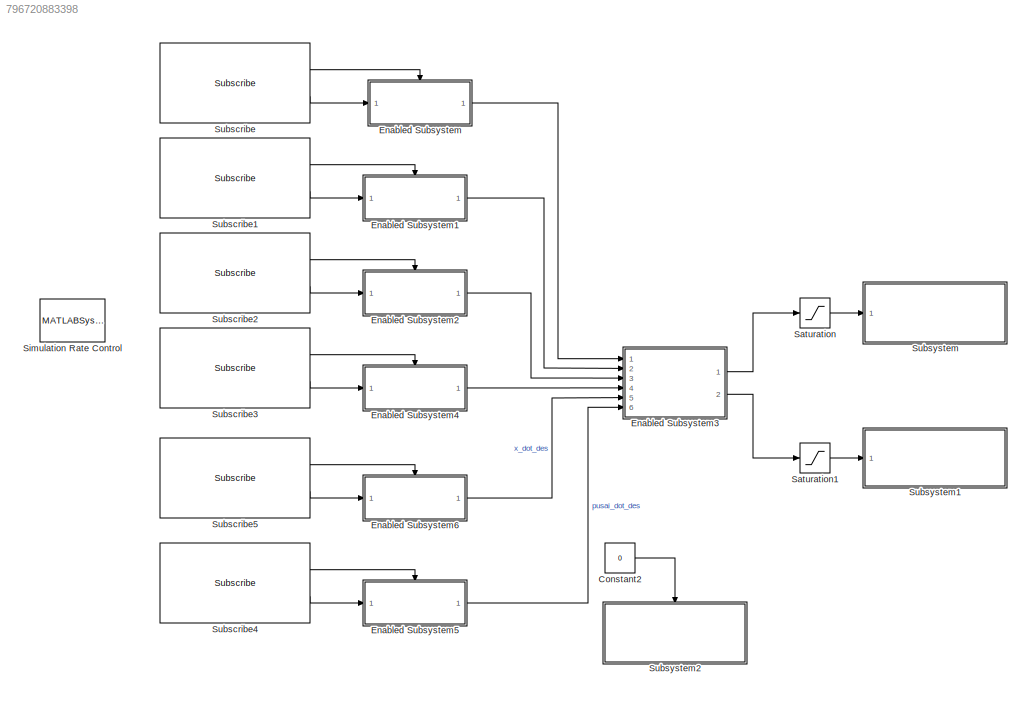
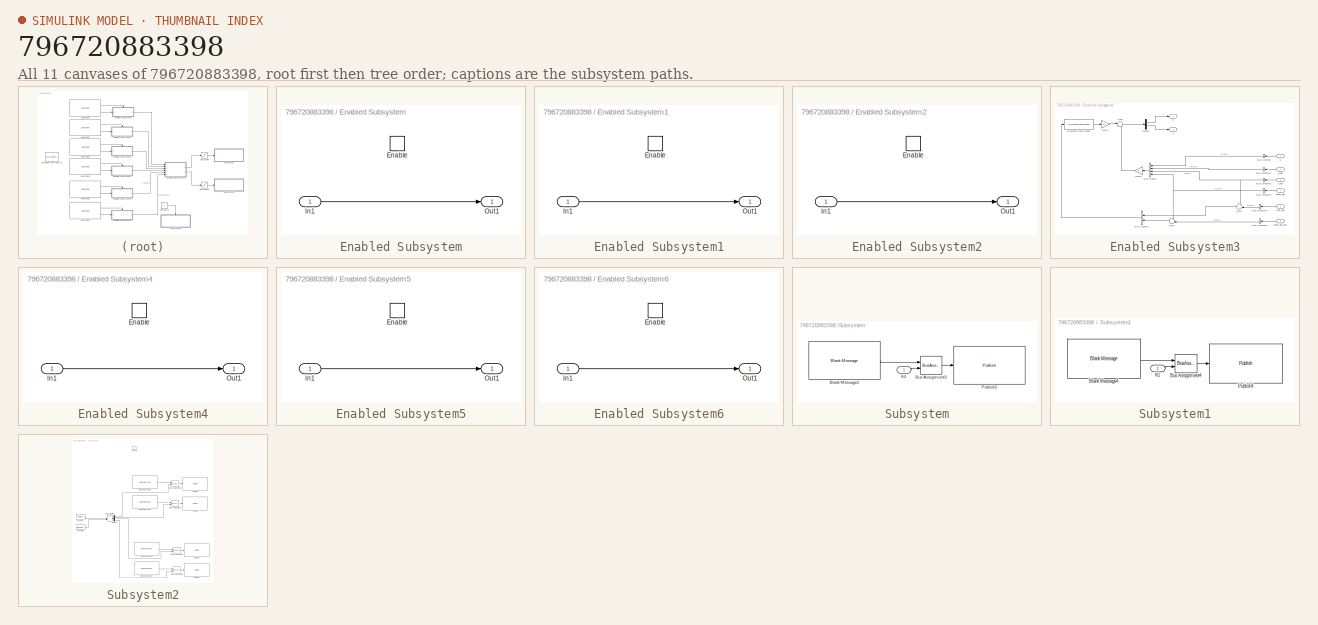
[diagram: thumbnail index - all 11 canvases of the model, root first then tree order]
MODEL slx_796720883398
KIND model
CONFIG AbsTol = auto
CONFIG EnableMultiTasking = off
CONFIG FixedStep = 0.01
CONFIG MaxStep = auto
CONFIG MinStep = auto
CONFIG RelTol = 1e-3
CONFIG SampleTimeConstraint = Unconstrained
CONFIG Solver = FixedStepAuto
CONFIG SolverName = FixedStepAuto
CONFIG StartTime = 0.0
CONFIG StopTime = inf
BLOCK [Constant] Constant2
  Value = 0
BLOCK [SubSystem] Enabled Subsystem
  Ports = [1, 1, 1]
  RequestExecContextInheritance = off
  TreatAsAtomicUnit = on
BLOCK [EnablePort] Enabled Subsystem/Enable
  Ports = []
BLOCK [Inport] Enabled Subsystem/In1
  IconDisplay = Port number
BLOCK [Outport] Enabled Subsystem/Out1
  IconDisplay = Port number
BLOCK [SubSystem] Enabled Subsystem1
  Ports = [1, 1, 1]
  RequestExecContextInheritance = off
  TreatAsAtomicUnit = on
BLOCK [EnablePort] Enabled Subsystem1/Enable
  Ports = []
BLOCK [Inport] Enabled Subsystem1/In1
  IconDisplay = Port number
BLOCK [Outport] Enabled Subsystem1/Out1
  IconDisplay = Port number
BLOCK [SubSystem] Enabled Subsystem2
  Ports = [1, 1, 1]
  RequestExecContextInheritance = off
  TreatAsAtomicUnit = on
BLOCK [EnablePort] Enabled Subsystem2/Enable
  Ports = []
BLOCK [Inport] Enabled Subsystem2/In1
  IconDisplay = Port number
BLOCK [Outport] Enabled Subsystem2/Out1
  IconDisplay = Port number
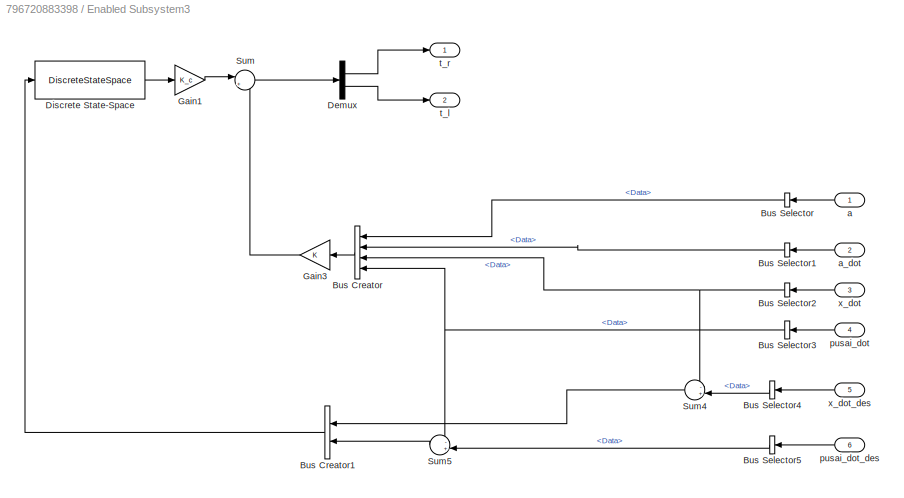
BLOCK [SubSystem] Enabled Subsystem3
  Ports = [6, 2]
  RequestExecContextInheritance = off
  TreatAsAtomicUnit = on
BLOCK [BusCreator] Enabled Subsystem3/Bus Creator
  DisplayOption = bar
  InheritFromInputs = on
  Inputs = 4
  Ports = [4, 1]
BLOCK [BusCreator] Enabled Subsystem3/Bus Creator1
  DisplayOption = bar
  InheritFromInputs = on
  Inputs = 2
  Ports = [2, 1]
BLOCK [BusSelector] Enabled Subsystem3/Bus Selector
  OutputAsBus = off
  OutputSignals = Data
  Ports = [1, 1]
BLOCK [BusSelector] Enabled Subsystem3/Bus Selector1
  OutputAsBus = off
  OutputSignals = Data
  Ports = [1, 1]
BLOCK [BusSelector] Enabled Subsystem3/Bus Selector2
  OutputAsBus = off
  OutputSignals = Data
  Ports = [1, 1]
BLOCK [BusSelector] Enabled Subsystem3/Bus Selector3
  OutputAsBus = off
  OutputSignals = Data
  Ports = [1, 1]
BLOCK [BusSelector] Enabled Subsystem3/Bus Selector4
  OutputAsBus = off
  OutputSignals = Data
  Ports = [1, 1]
BLOCK [BusSelector] Enabled Subsystem3/Bus Selector5
  OutputAsBus = off
  OutputSignals = Data
  Ports = [1, 1]
BLOCK [Demux] Enabled Subsystem3/Demux
  DisplayOption = bar
  Outputs = 2
  Ports = [1, 2]
BLOCK [DiscreteStateSpace] Enabled Subsystem3/Discrete State-Space
  A = sys_c_d.A
  B = sys_c_d.B
  C = sys_c_d.C
  D = sys_c_d.D
  SampleTime = -1
BLOCK [Gain] Enabled Subsystem3/Gain1
  Gain = K_c
  Multiplication = Matrix(K*u) (u vector)
  OutDataTypeStr = Inherit: Inherit via internal rule
  ParamDataTypeStr = Inherit: Inherit via internal rule
  SaturateOnIntegerOverflow = off
BLOCK [Gain] Enabled Subsystem3/Gain3
  Gain = K
  Multiplication = Matrix(K*u) (u vector)
  OutDataTypeStr = Inherit: Inherit via internal rule
  ParamDataTypeStr = Inherit: Inherit via internal rule
  SaturateOnIntegerOverflow = off
BLOCK [Sum] Enabled Subsystem3/Sum
  IconShape = round
  InputSameDT = off
  Inputs = |+-
  OutDataTypeStr = Inherit: Inherit via internal rule
  Ports = [2, 1]
  SaturateOnIntegerOverflow = off
BLOCK [Sum] Enabled Subsystem3/Sum4
  IconShape = round
  InputSameDT = off
  Inputs = -+|
  OutDataTypeStr = Inherit: Inherit via internal rule
  Ports = [2, 1]
  SaturateOnIntegerOverflow = off
BLOCK [Sum] Enabled Subsystem3/Sum5
  IconShape = round
  InputSameDT = off
  Inputs = -+|
  OutDataTypeStr = Inherit: Inherit via internal rule
  Ports = [2, 1]
  SaturateOnIntegerOverflow = off
BLOCK [Inport] Enabled Subsystem3/a
  IconDisplay = Port number
BLOCK [Inport] Enabled Subsystem3/a_dot
  IconDisplay = Port number
  Port = 2
BLOCK [Inport] Enabled Subsystem3/pusai_dot
  IconDisplay = Port number
  Port = 4
BLOCK [Inport] Enabled Subsystem3/pusai_dot_des
  IconDisplay = Port number
  Port = 6
BLOCK [Outport] Enabled Subsystem3/t_l
  IconDisplay = Port number
  Port = 2
BLOCK [Outport] Enabled Subsystem3/t_r
  IconDisplay = Port number
BLOCK [Inport] Enabled Subsystem3/x_dot
  IconDisplay = Port number
  Port = 3
BLOCK [Inport] Enabled Subsystem3/x_dot_des
  IconDisplay = Port number
  Port = 5
BLOCK [SubSystem] Enabled Subsystem4
  Ports = [1, 1, 1]
  RequestExecContextInheritance = off
  TreatAsAtomicUnit = on
BLOCK [EnablePort] Enabled Subsystem4/Enable
  Ports = []
BLOCK [Inport] Enabled Subsystem4/In1
  IconDisplay = Port number
BLOCK [Outport] Enabled Subsystem4/Out1
  IconDisplay = Port number
BLOCK [SubSystem] Enabled Subsystem5
  Ports = [1, 1, 1]
  RequestExecContextInheritance = off
  TreatAsAtomicUnit = on
BLOCK [EnablePort] Enabled Subsystem5/Enable
  Ports = []
BLOCK [Inport] Enabled Subsystem5/In1
  IconDisplay = Port number
BLOCK [Outport] Enabled Subsystem5/Out1
  IconDisplay = Port number
BLOCK [SubSystem] Enabled Subsystem6
  Ports = [1, 1, 1]
  RequestExecContextInheritance = off
  TreatAsAtomicUnit = on
BLOCK [EnablePort] Enabled Subsystem6/Enable
  Ports = []
BLOCK [Inport] Enabled Subsystem6/In1
  IconDisplay = Port number
BLOCK [Outport] Enabled Subsystem6/Out1
  IconDisplay = Port number
BLOCK [Saturate] Saturation
  InputPortMap = u0
  LowerLimit = -2
  Ports = [1, 1]
  UpperLimit = 2
BLOCK [Saturate] Saturation1
  InputPortMap = u0
  LowerLimit = -2
  Ports = [1, 1]
  UpperLimit = 2
BLOCK [MATLABSystem] Simulation Rate Control
  MaskDisplay = disp('Rate Control');
  MaskType = ExampleHelperSimulationRateControl
  Ports = []
  SampleTime = 0.01
  System = ExampleHelperSimulationRateControl
BLOCK [Reference] Subscribe  REF=robotlib/Subscribe
  Ports = [0, 2]
  SourceBlock = robotlib/Subscribe
  SourceProductBaseCode = RR
  SourceProductName = ROS Toolbox
  SourceType = ROS Subscribe
BLOCK [Reference] Subscribe1  REF=robotlib/Subscribe
  Ports = [0, 2]
  SourceBlock = robotlib/Subscribe
  SourceProductBaseCode = RR
  SourceProductName = ROS Toolbox
  SourceType = ROS Subscribe
BLOCK [Reference] Subscribe2  REF=robotlib/Subscribe
  Ports = [0, 2]
  SourceBlock = robotlib/Subscribe
  SourceProductBaseCode = RR
  SourceProductName = ROS Toolbox
  SourceType = ROS Subscribe
BLOCK [Reference] Subscribe3  REF=robotlib/Subscribe
  Ports = [0, 2]
  SourceBlock = robotlib/Subscribe
  SourceProductBaseCode = RR
  SourceProductName = ROS Toolbox
  SourceType = ROS Subscribe
BLOCK [Reference] Subscribe4  REF=robotlib/Subscribe
  Ports = [0, 2]
  SourceBlock = robotlib/Subscribe
  SourceProductBaseCode = RR
  SourceProductName = ROS Toolbox
  SourceType = ROS Subscribe
BLOCK [Reference] Subscribe5  REF=robotlib/Subscribe
  Ports = [0, 2]
  SourceBlock = robotlib/Subscribe
  SourceProductBaseCode = RR
  SourceProductName = ROS Toolbox
  SourceType = ROS Subscribe
BLOCK [SubSystem] Subsystem
  Ports = [1]
  RequestExecContextInheritance = off
BLOCK [Reference] Subsystem/Blank Message3  REF=robotlib/Blank Message
  Ports = [0, 1]
  SourceBlock = robotlib/Blank Message
  SourceProductBaseCode = RR
  SourceProductName = ROS Toolbox
  SourceType = ROS Blank Message
BLOCK [BusAssignment] Subsystem/Bus Assignment3
  AssignedSignals = Data
  Ports = [2, 1]
BLOCK [Inport] Subsystem/In1
  IconDisplay = Port number
BLOCK [Reference] Subsystem/Publish3  REF=robotlib/Publish
  Ports = [1]
  SourceBlock = robotlib/Publish
  SourceProductBaseCode = RR
  SourceProductName = ROS Toolbox
  SourceType = ROS Publish
BLOCK [SubSystem] Subsystem1
  Ports = [1]
  RequestExecContextInheritance = off
BLOCK [Reference] Subsystem1/Blank Message4  REF=robotlib/Blank Message
  Ports = [0, 1]
  SourceBlock = robotlib/Blank Message
  SourceProductBaseCode = RR
  SourceProductName = ROS Toolbox
  SourceType = ROS Blank Message
BLOCK [BusAssignment] Subsystem1/Bus Assignment4
  AssignedSignals = Data
  Ports = [2, 1]
BLOCK [Inport] Subsystem1/In1
  IconDisplay = Port number
BLOCK [Reference] Subsystem1/Publish4  REF=robotlib/Publish
  Ports = [1]
  SourceBlock = robotlib/Publish
  SourceProductBaseCode = RR
  SourceProductName = ROS Toolbox
  SourceType = ROS Publish
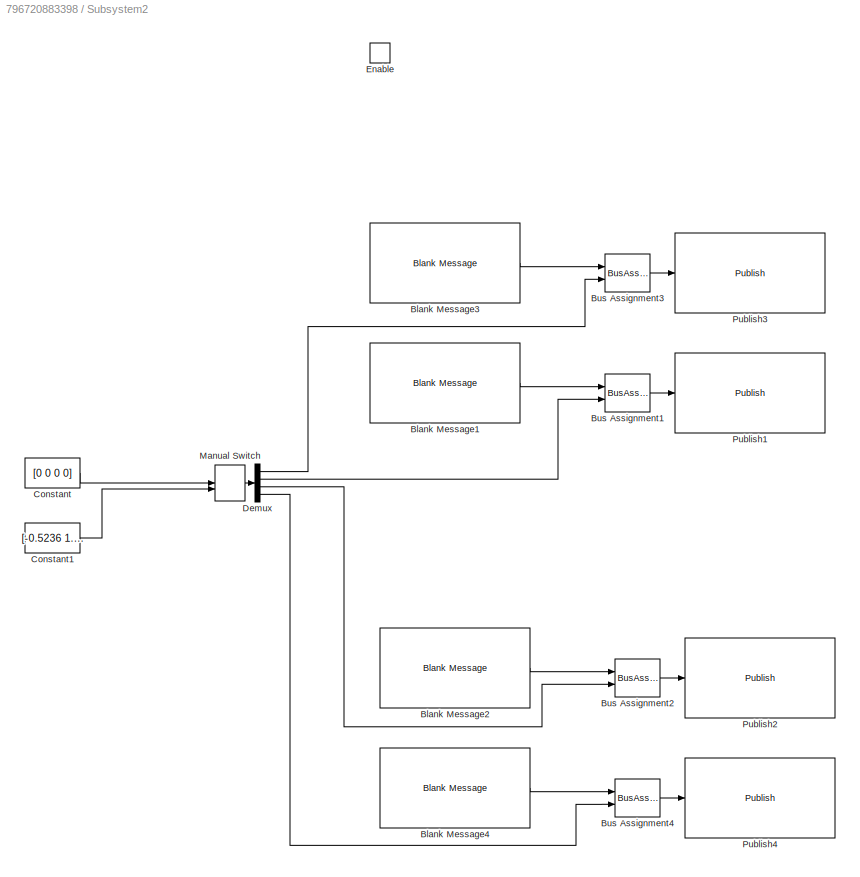
BLOCK [SubSystem] Subsystem2
  Ports = [0, 0, 1]
  RequestExecContextInheritance = off
BLOCK [Reference] Subsystem2/Blank Message1  REF=robotlib/Blank Message
  Ports = [0, 1]
  SourceBlock = robotlib/Blank Message
  SourceProductBaseCode = RR
  SourceProductName = ROS Toolbox
  SourceType = ROS Blank Message
BLOCK [Reference] Subsystem2/Blank Message2  REF=robotlib/Blank Message
  Ports = [0, 1]
  SourceBlock = robotlib/Blank Message
  SourceProductBaseCode = RR
  SourceProductName = ROS Toolbox
  SourceType = ROS Blank Message
BLOCK [Reference] Subsystem2/Blank Message3  REF=robotlib/Blank Message
  Ports = [0, 1]
  SourceBlock = robotlib/Blank Message
  SourceProductBaseCode = RR
  SourceProductName = ROS Toolbox
  SourceType = ROS Blank Message
BLOCK [Reference] Subsystem2/Blank Message4  REF=robotlib/Blank Message
  Ports = [0, 1]
  SourceBlock = robotlib/Blank Message
  SourceProductBaseCode = RR
  SourceProductName = ROS Toolbox
  SourceType = ROS Blank Message
BLOCK [BusAssignment] Subsystem2/Bus Assignment1
  AssignedSignals = Data
  Ports = [2, 1]
BLOCK [BusAssignment] Subsystem2/Bus Assignment2
  AssignedSignals = Data
  Ports = [2, 1]
BLOCK [BusAssignment] Subsystem2/Bus Assignment3
  AssignedSignals = Data
  Ports = [2, 1]
BLOCK [BusAssignment] Subsystem2/Bus Assignment4
  AssignedSignals = Data
  Ports = [2, 1]
BLOCK [Constant] Subsystem2/Constant
  Value = [0 0 0 0]
BLOCK [Constant] Subsystem2/Constant1
  Value = [-0.5236 1.0472 -0.5236  1.0472]
BLOCK [Demux] Subsystem2/Demux
  DisplayOption = bar
  Ports = [1, 4]
BLOCK [EnablePort] Subsystem2/Enable
  Ports = []
BLOCK [ManualSwitch] Subsystem2/Manual Switch
BLOCK [Reference] Subsystem2/Publish1  REF=robotlib/Publish
  Ports = [1]
  SourceBlock = robotlib/Publish
  SourceProductBaseCode = RR
  SourceProductName = ROS Toolbox
  SourceType = ROS Publish
BLOCK [Reference] Subsystem2/Publish2  REF=robotlib/Publish
  Ports = [1]
  SourceBlock = robotlib/Publish
  SourceProductBaseCode = RR
  SourceProductName = ROS Toolbox
  SourceType = ROS Publish
BLOCK [Reference] Subsystem2/Publish3  REF=robotlib/Publish
  Ports = [1]
  SourceBlock = robotlib/Publish
  SourceProductBaseCode = RR
  SourceProductName = ROS Toolbox
  SourceType = ROS Publish
BLOCK [Reference] Subsystem2/Publish4  REF=robotlib/Publish
  Ports = [1]
  SourceBlock = robotlib/Publish
  SourceProductBaseCode = RR
  SourceProductName = ROS Toolbox
  SourceType = ROS Publish
LINE Constant2:1 -> Subsystem2:enable
LINE Enabled Subsystem/In1:1 -> Enabled Subsystem/Out1:1
LINE Enabled Subsystem1/In1:1 -> Enabled Subsystem1/Out1:1
LINE Enabled Subsystem1:1 -> Enabled Subsystem3:2
LINE Enabled Subsystem2/In1:1 -> Enabled Subsystem2/Out1:1
LINE Enabled Subsystem2:1 -> Enabled Subsystem3:3
LINE Enabled Subsystem3/Bus Creator1:1 -> Enabled Subsystem3/Discrete State-Space:1
LINE Enabled Subsystem3/Bus Creator:1 -> Enabled Subsystem3/Gain3:1
LINE Enabled Subsystem3/Bus Selector1:1 -> Enabled Subsystem3/Bus Creator:2
NET Enabled Subsystem3/Bus Selector2:1 -> Enabled Subsystem3/Bus Creator:3, Enabled Subsystem3/Sum4:1
NET Enabled Subsystem3/Bus Selector3:1 -> Enabled Subsystem3/Bus Creator:4, Enabled Subsystem3/Sum5:1
LINE Enabled Subsystem3/Bus Selector4:1 -> Enabled Subsystem3/Sum4:2
LINE Enabled Subsystem3/Bus Selector5:1 -> Enabled Subsystem3/Sum5:2
LINE Enabled Subsystem3/Bus Selector:1 -> Enabled Subsystem3/Bus Creator:1
LINE Enabled Subsystem3/Demux:1 -> Enabled Subsystem3/t_r:1
LINE Enabled Subsystem3/Demux:2 -> Enabled Subsystem3/t_l:1
LINE Enabled Subsystem3/Discrete State-Space:1 -> Enabled Subsystem3/Gain1:1
LINE Enabled Subsystem3/Gain1:1 -> Enabled Subsystem3/Sum:1
LINE Enabled Subsystem3/Gain3:1 -> Enabled Subsystem3/Sum:2
LINE Enabled Subsystem3/Sum4:1 -> Enabled Subsystem3/Bus Creator1:1
LINE Enabled Subsystem3/Sum5:1 -> Enabled Subsystem3/Bus Creator1:2
LINE Enabled Subsystem3/Sum:1 -> Enabled Subsystem3/Demux:1
LINE Enabled Subsystem3/a:1 -> Enabled Subsystem3/Bus Selector:1
LINE Enabled Subsystem3/a_dot:1 -> Enabled Subsystem3/Bus Selector1:1
LINE Enabled Subsystem3/pusai_dot:1 -> Enabled Subsystem3/Bus Selector3:1
LINE Enabled Subsystem3/pusai_dot_des:1 -> Enabled Subsystem3/Bus Selector5:1
LINE Enabled Subsystem3/x_dot:1 -> Enabled Subsystem3/Bus Selector2:1
LINE Enabled Subsystem3/x_dot_des:1 -> Enabled Subsystem3/Bus Selector4:1
LINE Enabled Subsystem3:1 -> Saturation:1
LINE Enabled Subsystem3:2 -> Saturation1:1
LINE Enabled Subsystem4/In1:1 -> Enabled Subsystem4/Out1:1
LINE Enabled Subsystem4:1 -> Enabled Subsystem3:4
LINE Enabled Subsystem5/In1:1 -> Enabled Subsystem5/Out1:1
LINE Enabled Subsystem5:1 -> Enabled Subsystem3:6
LINE Enabled Subsystem6/In1:1 -> Enabled Subsystem6/Out1:1
LINE Enabled Subsystem6:1 -> Enabled Subsystem3:5
LINE Enabled Subsystem:1 -> Enabled Subsystem3:1
LINE Saturation1:1 -> Subsystem1:1
LINE Saturation:1 -> Subsystem:1
LINE Subscribe1:1 -> Enabled Subsystem1:enable
LINE Subscribe1:2 -> Enabled Subsystem1:1
LINE Subscribe2:1 -> Enabled Subsystem2:enable
LINE Subscribe2:2 -> Enabled Subsystem2:1
LINE Subscribe3:1 -> Enabled Subsystem4:enable
LINE Subscribe3:2 -> Enabled Subsystem4:1
LINE Subscribe4:1 -> Enabled Subsystem5:enable
LINE Subscribe4:2 -> Enabled Subsystem5:1
LINE Subscribe5:1 -> Enabled Subsystem6:enable
LINE Subscribe5:2 -> Enabled Subsystem6:1
LINE Subscribe:1 -> Enabled Subsystem:enable
LINE Subscribe:2 -> Enabled Subsystem:1
LINE Subsystem/Blank Message3:1 -> Subsystem/Bus Assignment3:1
LINE Subsystem/Bus Assignment3:1 -> Subsystem/Publish3:1
LINE Subsystem/In1:1 -> Subsystem/Bus Assignment3:2
LINE Subsystem1/Blank Message4:1 -> Subsystem1/Bus Assignment4:1
LINE Subsystem1/Bus Assignment4:1 -> Subsystem1/Publish4:1
LINE Subsystem1/In1:1 -> Subsystem1/Bus Assignment4:2
LINE Subsystem2/Blank Message1:1 -> Subsystem2/Bus Assignment1:1
LINE Subsystem2/Blank Message2:1 -> Subsystem2/Bus Assignment2:1
LINE Subsystem2/Blank Message3:1 -> Subsystem2/Bus Assignment3:1
LINE Subsystem2/Blank Message4:1 -> Subsystem2/Bus Assignment4:1
LINE Subsystem2/Bus Assignment1:1 -> Subsystem2/Publish1:1
LINE Subsystem2/Bus Assignment2:1 -> Subsystem2/Publish2:1
LINE Subsystem2/Bus Assignment3:1 -> Subsystem2/Publish3:1
LINE Subsystem2/Bus Assignment4:1 -> Subsystem2/Publish4:1
LINE Subsystem2/Constant1:1 -> Subsystem2/Manual Switch:2
LINE Subsystem2/Constant:1 -> Subsystem2/Manual Switch:1
LINE Subsystem2/Demux:1 -> Subsystem2/Bus Assignment3:2
LINE Subsystem2/Demux:2 -> Subsystem2/Bus Assignment1:2
LINE Subsystem2/Demux:3 -> Subsystem2/Bus Assignment2:2
LINE Subsystem2/Demux:4 -> Subsystem2/Bus Assignment4:2
LINE Subsystem2/Manual Switch:1 -> Subsystem2/Demux:1
note: NET lines group one-source signal fan-out (src -> all destinations, sorted); 1:1 wires keep LINE
